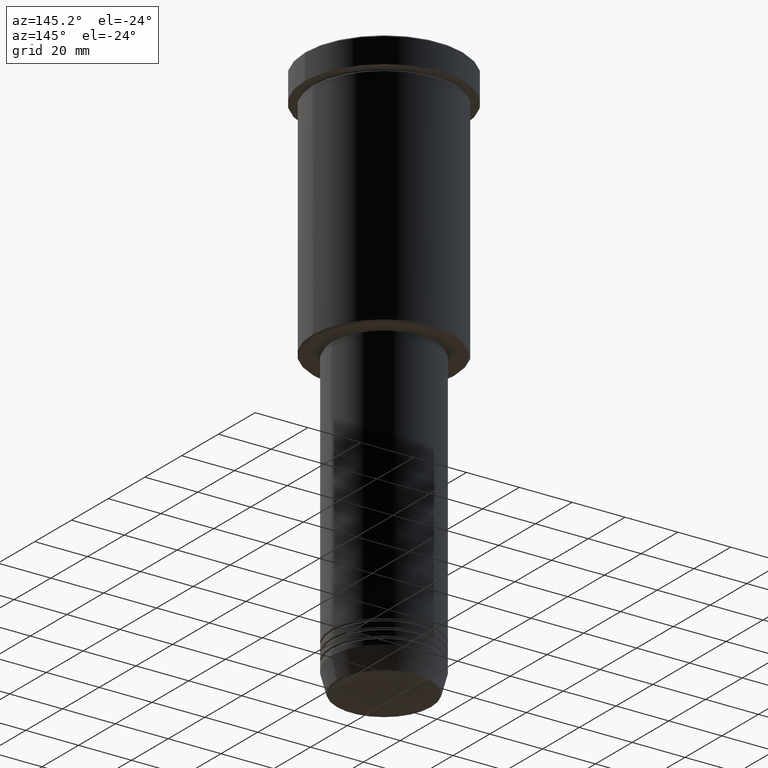
[diagram: clean part render]
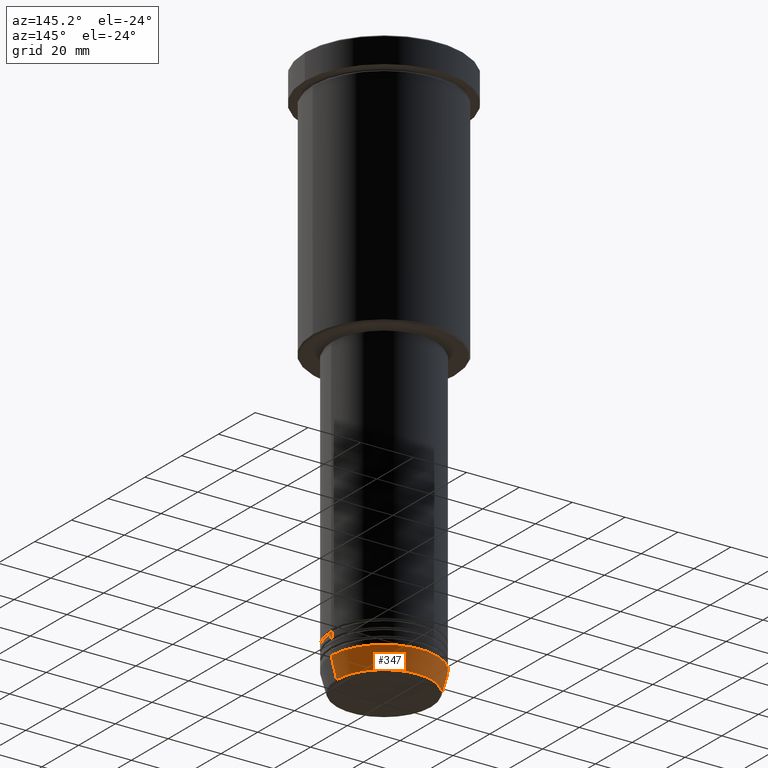
[diagram: same view with one face highlighted and labeled with its STEP entity id]
A machine part, auxiliary view. The second image highlights one B-rep face of the part: STEP entity #347.
In plain terms, the highlighted conical surface has half-angle 15 deg.
Its self-contained STEP definition (entity closure, byte-faithful):
#96 = ORIENTED_EDGE ( 'NONE', *, *, #262, .F. ) ;
#166 = LINE ( 'NONE', #529, #584 ) ;
#180 = AXIS2_PLACEMENT_3D ( 'NONE', #567, #735, #749 ) ;
#207 = FACE_OUTER_BOUND ( 'NONE', #251, .T. ) ;
#251 = EDGE_LOOP ( 'NONE', ( #419, #910, #753, #96 ) ) ;
#262 = EDGE_CURVE ( 'NONE', #851, #856, #722, .T. ) ;
#266 = CARTESIAN_POINT ( 'NONE',  ( 20.00000000000000000, 0.000000000000000000, -203.0000000000000000 ) ) ;
#273 = AXIS2_PLACEMENT_3D ( 'NONE', #539, #630, #619 ) ;
#347 = ADVANCED_FACE ( 'NONE', ( #207 ), #694, .T. ) ;
#366 = VERTEX_POINT ( 'NONE', #1028 ) ;
#378 = VERTEX_POINT ( 'NONE', #664 ) ;
#379 = CARTESIAN_POINT ( 'NONE',  ( 20.00000000000000000, 0.000000000000000000, -203.0000000000000000 ) ) ;
#419 = ORIENTED_EDGE ( 'NONE', *, *, #716, .T. ) ;
#435 = DIRECTION ( 'NONE',  ( 0.2588190451025212391, 0.000000000000000000, 0.9659258262890680902 ) ) ;
#504 = AXIS2_PLACEMENT_3D ( 'NONE', #1058, #986, #528 ) ;
#528 = DIRECTION ( 'NONE',  ( 1.000000000000000000, 0.000000000000000000, 0.000000000000000000 ) ) ;
#529 = CARTESIAN_POINT ( 'NONE',  ( -20.00000000000000000, 2.449293598294706513E-15, -203.0000000000000000 ) ) ;
#539 = CARTESIAN_POINT ( 'NONE',  ( 0.000000000000000000, 0.000000000000000000, -210.6294095225512706 ) ) ;
#567 = CARTESIAN_POINT ( 'NONE',  ( 0.000000000000000000, 0.000000000000000000, -203.0000000000000000 ) ) ;
#584 = VECTOR ( 'NONE', #894, 1000.000000000000114 ) ;
#619 = DIRECTION ( 'NONE',  ( 1.000000000000000000, 0.000000000000000000, 0.000000000000000000 ) ) ;
#630 = DIRECTION ( 'NONE',  ( -0.000000000000000000, -0.000000000000000000, 1.000000000000000000 ) ) ;
#635 = CARTESIAN_POINT ( 'NONE',  ( 17.95570587970605558, 0.000000000000000000, -210.6294095225512706 ) ) ;
#637 = VECTOR ( 'NONE', #435, 1000.000000000000114 ) ;
#664 = CARTESIAN_POINT ( 'NONE',  ( -17.95570587970605558, 2.324116685748020188E-15, -210.6294095225512706 ) ) ;
#694 = CONICAL_SURFACE ( 'NONE', #180, 20.00000000000000000, 0.2617993877991499629 ) ;
#716 = EDGE_CURVE ( 'NONE', #851, #378, #791, .T. ) ;
#722 = LINE ( 'NONE', #266, #637 ) ;
#735 = DIRECTION ( 'NONE',  ( -0.000000000000000000, -0.000000000000000000, 1.000000000000000000 ) ) ;
#749 = DIRECTION ( 'NONE',  ( 1.000000000000000000, 0.000000000000000000, 0.000000000000000000 ) ) ;
#753 = ORIENTED_EDGE ( 'NONE', *, *, #1138, .F. ) ;
#786 = EDGE_CURVE ( 'NONE', #378, #366, #166, .T. ) ;
#791 = CIRCLE ( 'NONE', #273, 17.95570587970605558 ) ;
#851 = VERTEX_POINT ( 'NONE', #635 ) ;
#856 = VERTEX_POINT ( 'NONE', #379 ) ;
#894 = DIRECTION ( 'NONE',  ( -0.2588190451025212391, 3.169619151431771721E-17, 0.9659258262890680902 ) ) ;
#910 = ORIENTED_EDGE ( 'NONE', *, *, #786, .T. ) ;
#986 = DIRECTION ( 'NONE',  ( -0.000000000000000000, -0.000000000000000000, 1.000000000000000000 ) ) ;
#1016 = CIRCLE ( 'NONE', #504, 20.00000000000000000 ) ;
#1028 = CARTESIAN_POINT ( 'NONE',  ( -20.00000000000000000, 2.449293598294706513E-15, -203.0000000000000000 ) ) ;
#1058 = CARTESIAN_POINT ( 'NONE',  ( 0.000000000000000000, 0.000000000000000000, -203.0000000000000000 ) ) ;
#1138 = EDGE_CURVE ( 'NONE', #856, #366, #1016, .T. ) ;